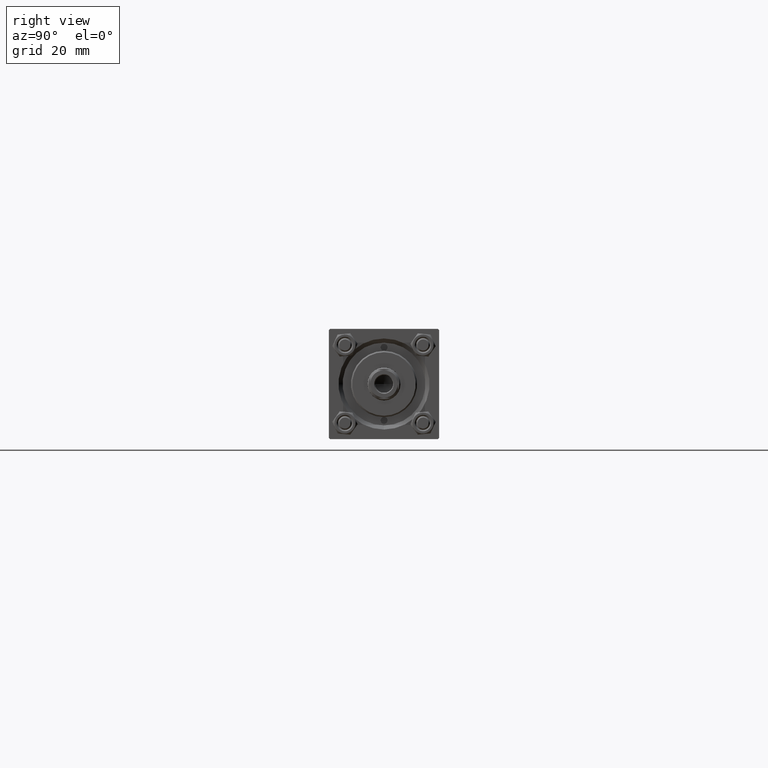
[diagram: clean part render]
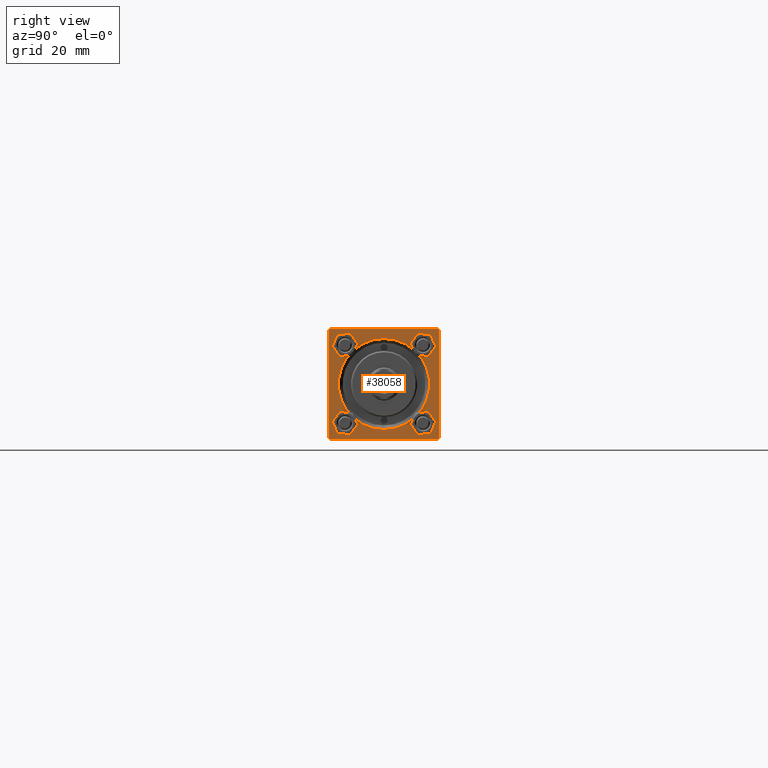
[diagram: same view with one face highlighted and labeled with its STEP entity id]
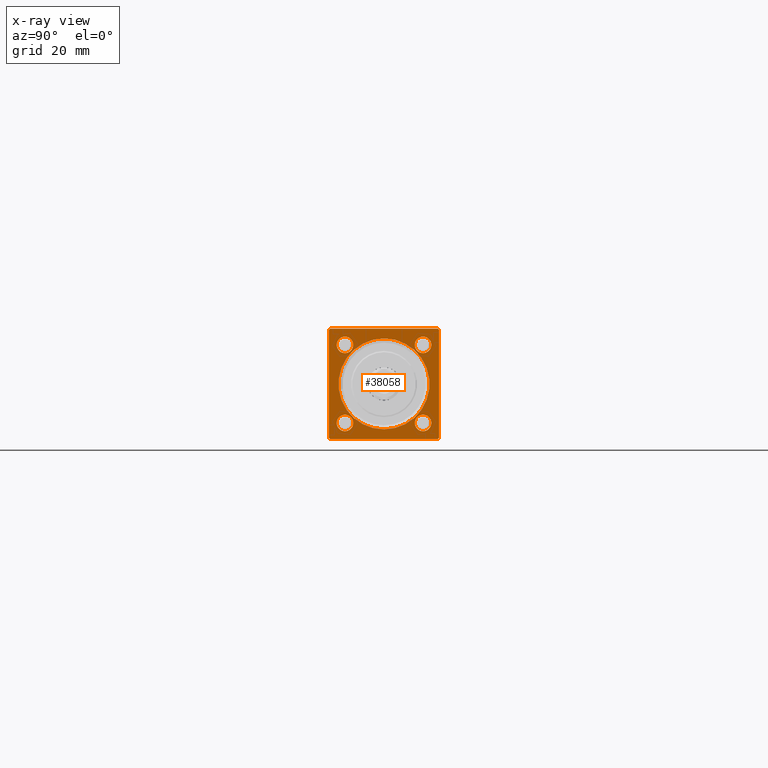
[diagram: x-ray of the same camera — body ghosted, the highlighted face saturated]
A machine part, right view. The second image highlights one B-rep face of the part: STEP entity #38058.
The next image is the same camera in x-ray: the body ghosted, the highlighted face saturated — about 0% of this face is hidden behind the body in this view.
In plain terms, the highlighted planar face has unit normal (-1, 0, 0).
Its self-contained STEP definition (entity closure, byte-faithful):
#672 = VERTEX_POINT ( 'NONE', #37649 ) ;
#1113 = EDGE_CURVE ( 'NONE', #7236, #18764, #37791, .T. ) ;
#2310 = CARTESIAN_POINT ( 'NONE',  ( 224.9999999999999716, 19.99999999999999645, 19.50000000000000000 ) ) ;
#2459 = ORIENTED_EDGE ( 'NONE', *, *, #8846, .T. ) ;
#2927 = ORIENTED_EDGE ( 'NONE', *, *, #18251, .F. ) ;
#2967 = VERTEX_POINT ( 'NONE', #48168 ) ;
#4169 = CARTESIAN_POINT ( 'NONE',  ( 224.9999999999999716, -14.15000000000000036, -14.15000000000000036 ) ) ;
#4239 = FACE_BOUND ( 'NONE', #39670, .T. ) ;
#4836 = DIRECTION ( 'NONE',  ( 0.000000000000000000, 0.000000000000000000, 1.000000000000000000 ) ) ;
#5036 = AXIS2_PLACEMENT_3D ( 'NONE', #20615, #24147, #28438 ) ;
#5046 = VECTOR ( 'NONE', #8676, 1000.000000000000000 ) ;
#5124 = CARTESIAN_POINT ( 'NONE',  ( 224.9999999999999716, -20.00000000000000000, -19.50000000000002487 ) ) ;
#5737 = ORIENTED_EDGE ( 'NONE', *, *, #20687, .T. ) ;
#5779 = CARTESIAN_POINT ( 'NONE',  ( 224.9999999999999716, 14.15000000000000036, -14.15000000000000036 ) ) ;
#6175 = CARTESIAN_POINT ( 'NONE',  ( 224.9999999999999716, 0.000000000000000000, 0.000000000000000000 ) ) ;
#6686 = DIRECTION ( 'NONE',  ( 0.000000000000000000, 0.000000000000000000, 1.000000000000000000 ) ) ;
#7175 = CARTESIAN_POINT ( 'NONE',  ( 224.9999999999999716, 0.000000000000000000, 0.000000000000000000 ) ) ;
#7230 = AXIS2_PLACEMENT_3D ( 'NONE', #26467, #41867, #46917 ) ;
#7236 = VERTEX_POINT ( 'NONE', #25157 ) ;
#7266 = DIRECTION ( 'NONE',  ( 0.000000000000000000, 0.000000000000000000, 1.000000000000000000 ) ) ;
#7281 = FACE_OUTER_BOUND ( 'NONE', #36990, .T. ) ;
#8433 = CIRCLE ( 'NONE', #34204, 16.50000000000001421 ) ;
#8676 = DIRECTION ( 'NONE',  ( 0.000000000000000000, -1.000000000000000000, -8.673617379884035472E-17 ) ) ;
#8846 = EDGE_CURVE ( 'NONE', #34570, #28598, #32977, .T. ) ;
#9345 = CARTESIAN_POINT ( 'NONE',  ( 224.9999999999999716, 19.99999999999999645, -19.50000000000000000 ) ) ;
#9641 = CARTESIAN_POINT ( 'NONE',  ( 224.9999999999999716, 14.15000000000000036, -14.15000000000000036 ) ) ;
#10022 = AXIS2_PLACEMENT_3D ( 'NONE', #45278, #29884, #6686 ) ;
#10477 = CIRCLE ( 'NONE', #7230, 3.000000000000004441 ) ;
#11219 = EDGE_CURVE ( 'NONE', #28598, #34570, #10477, .T. ) ;
#11273 = ORIENTED_EDGE ( 'NONE', *, *, #36406, .T. ) ;
#11442 = VECTOR ( 'NONE', #47156, 1000.000000000000000 ) ;
#11625 = VERTEX_POINT ( 'NONE', #49257 ) ;
#12061 = EDGE_CURVE ( 'NONE', #48264, #11625, #45146, .T. ) ;
#12851 = CARTESIAN_POINT ( 'NONE',  ( 224.9999999999999716, 14.15000000000000036, 11.14999999999999858 ) ) ;
#14619 = FACE_BOUND ( 'NONE', #21502, .T. ) ;
#14681 = ORIENTED_EDGE ( 'NONE', *, *, #1113, .F. ) ;
#14854 = DIRECTION ( 'NONE',  ( 0.000000000000000000, -0.7071067811865474617, 0.7071067811865474617 ) ) ;
#15287 = CARTESIAN_POINT ( 'NONE',  ( 224.9999999999999716, 14.15000000000000036, -17.15000000000000568 ) ) ;
#15573 = CARTESIAN_POINT ( 'NONE',  ( 224.9999999999999716, 19.99999999999999645, -20.00000000000000000 ) ) ;
#16115 = EDGE_CURVE ( 'NONE', #34964, #46826, #19900, .T. ) ;
#16320 = CARTESIAN_POINT ( 'NONE',  ( 224.9999999999999716, 19.99999999999999645, 20.00000000000000000 ) ) ;
#17378 = DIRECTION ( 'NONE',  ( -1.000000000000000000, -0.000000000000000000, -0.000000000000000000 ) ) ;
#17623 = DIRECTION ( 'NONE',  ( 0.000000000000000000, 0.000000000000000000, 1.000000000000000000 ) ) ;
#17655 = AXIS2_PLACEMENT_3D ( 'NONE', #34023, #30223, #7266 ) ;
#17722 = VERTEX_POINT ( 'NONE', #2310 ) ;
#18251 = EDGE_CURVE ( 'NONE', #17722, #42855, #43812, .T. ) ;
#18272 = DIRECTION ( 'NONE',  ( -1.000000000000000000, -0.000000000000000000, -0.000000000000000000 ) ) ;
#18288 = VECTOR ( 'NONE', #46085, 1000.000000000000000 ) ;
#18496 = CARTESIAN_POINT ( 'NONE',  ( 224.9999999999999716, 14.15000000000000036, 17.15000000000000568 ) ) ;
#18746 = DIRECTION ( 'NONE',  ( 0.000000000000000000, 0.000000000000000000, 1.000000000000000000 ) ) ;
#18764 = VERTEX_POINT ( 'NONE', #38905 ) ;
#18820 = VERTEX_POINT ( 'NONE', #27283 ) ;
#18871 = CARTESIAN_POINT ( 'NONE',  ( 224.9999999999999716, 0.000000000000000000, 0.000000000000000000 ) ) ;
#19037 = EDGE_LOOP ( 'NONE', ( #41536, #46568 ) ) ;
#19195 = ORIENTED_EDGE ( 'NONE', *, *, #41080, .T. ) ;
#19377 = CIRCLE ( 'NONE', #37153, 3.000000000000004441 ) ;
#19388 = PLANE ( 'NONE',  #36651 ) ;
#19900 = LINE ( 'NONE', #35307, #11442 ) ;
#20497 = CIRCLE ( 'NONE', #48684, 3.000000000000004441 ) ;
#20583 = ORIENTED_EDGE ( 'NONE', *, *, #11219, .T. ) ;
#20615 = CARTESIAN_POINT ( 'NONE',  ( 224.9999999999999716, -14.15000000000000036, 14.15000000000000036 ) ) ;
#20687 = EDGE_CURVE ( 'NONE', #11625, #48264, #21956, .T. ) ;
#20785 = EDGE_LOOP ( 'NONE', ( #11273, #40885 ) ) ;
#21502 = EDGE_LOOP ( 'NONE', ( #20583, #2459 ) ) ;
#21752 = DIRECTION ( 'NONE',  ( -0.000000000000000000, 0.7071067811865474617, 0.7071067811865474617 ) ) ;
#21956 = CIRCLE ( 'NONE', #5036, 2.999999999999976463 ) ;
#22078 = AXIS2_PLACEMENT_3D ( 'NONE', #7175, #18272, #30629 ) ;
#22413 = CARTESIAN_POINT ( 'NONE',  ( 224.9999999999999716, 19.49999999999999645, 20.00000000000000000 ) ) ;
#22591 = ORIENTED_EDGE ( 'NONE', *, *, #36143, .T. ) ;
#22670 = DIRECTION ( 'NONE',  ( -0.000000000000000000, 0.000000000000000000, 1.000000000000000000 ) ) ;
#22929 = CIRCLE ( 'NONE', #27760, 3.000000000000004441 ) ;
#23166 = FACE_BOUND ( 'NONE', #20785, .T. ) ;
#23420 = DIRECTION ( 'NONE',  ( -1.000000000000000000, 0.000000000000000000, -0.000000000000000000 ) ) ;
#23595 = EDGE_CURVE ( 'NONE', #672, #37225, #19377, .T. ) ;
#23853 = DIRECTION ( 'NONE',  ( -1.000000000000000000, -0.000000000000000000, -0.000000000000000000 ) ) ;
#23947 = ORIENTED_EDGE ( 'NONE', *, *, #23595, .T. ) ;
#24131 = ORIENTED_EDGE ( 'NONE', *, *, #35899, .T. ) ;
#24147 = DIRECTION ( 'NONE',  ( -1.000000000000000000, -0.000000000000000000, -0.000000000000000000 ) ) ;
#25157 = CARTESIAN_POINT ( 'NONE',  ( 224.9999999999999716, 19.49999999999999645, -20.00000000000000000 ) ) ;
#25913 = VECTOR ( 'NONE', #47343, 1000.000000000000000 ) ;
#26467 = CARTESIAN_POINT ( 'NONE',  ( 224.9999999999999716, 14.15000000000000036, 14.15000000000000036 ) ) ;
#26590 = VERTEX_POINT ( 'NONE', #5124 ) ;
#26600 = AXIS2_PLACEMENT_3D ( 'NONE', #46805, #29057, #44450 ) ;
#27283 = CARTESIAN_POINT ( 'NONE',  ( 224.9999999999999716, 2.020667218593134678E-15, 16.50000000000001421 ) ) ;
#27337 = LINE ( 'NONE', #42224, #5046 ) ;
#27760 = AXIS2_PLACEMENT_3D ( 'NONE', #4169, #23853, #46301 ) ;
#28438 = DIRECTION ( 'NONE',  ( 0.000000000000000000, 0.000000000000000000, 1.000000000000000000 ) ) ;
#28598 = VERTEX_POINT ( 'NONE', #12851 ) ;
#29057 = DIRECTION ( 'NONE',  ( -1.000000000000000000, -0.000000000000000000, -0.000000000000000000 ) ) ;
#29327 = LINE ( 'NONE', #30313, #38222 ) ;
#29884 = DIRECTION ( 'NONE',  ( -1.000000000000000000, -0.000000000000000000, -0.000000000000000000 ) ) ;
#29948 = CARTESIAN_POINT ( 'NONE',  ( 224.9999999999999716, -20.00000000000000355, 19.99999999999999645 ) ) ;
#30110 = DIRECTION ( 'NONE',  ( -1.000000000000000000, -0.000000000000000000, -0.000000000000000000 ) ) ;
#30114 = CARTESIAN_POINT ( 'NONE',  ( 224.9999999999999716, -14.15000000000000036, -11.14999999999999680 ) ) ;
#30142 = CIRCLE ( 'NONE', #10022, 3.000000000000004441 ) ;
#30223 = DIRECTION ( 'NONE',  ( -1.000000000000000000, -0.000000000000000000, -0.000000000000000000 ) ) ;
#30313 = CARTESIAN_POINT ( 'NONE',  ( 224.9999999999999716, 19.99999999999999645, -19.50000000000000000 ) ) ;
#30329 = VERTEX_POINT ( 'NONE', #36697 ) ;
#30629 = DIRECTION ( 'NONE',  ( 0.000000000000000000, 0.000000000000000000, 1.000000000000000000 ) ) ;
#30692 = DIRECTION ( 'NONE',  ( 0.000000000000000000, 8.673617379884036705E-17, -1.000000000000000000 ) ) ;
#31740 = EDGE_CURVE ( 'NONE', #41657, #34964, #27337, .T. ) ;
#32486 = ORIENTED_EDGE ( 'NONE', *, *, #12061, .T. ) ;
#32557 = ORIENTED_EDGE ( 'NONE', *, *, #31740, .T. ) ;
#32977 = CIRCLE ( 'NONE', #17655, 3.000000000000004441 ) ;
#33419 = CARTESIAN_POINT ( 'NONE',  ( 224.9999999999999716, -14.15000000000000036, 17.14999999999997726 ) ) ;
#34023 = CARTESIAN_POINT ( 'NONE',  ( 224.9999999999999716, 14.15000000000000036, 14.15000000000000036 ) ) ;
#34204 = AXIS2_PLACEMENT_3D ( 'NONE', #6175, #30110, #18746 ) ;
#34487 = ORIENTED_EDGE ( 'NONE', *, *, #43994, .T. ) ;
#34570 = VERTEX_POINT ( 'NONE', #18496 ) ;
#34964 = VERTEX_POINT ( 'NONE', #38823 ) ;
#35307 = CARTESIAN_POINT ( 'NONE',  ( 224.9999999999999716, -20.00000000000000355, 19.50000000000002487 ) ) ;
#35899 = EDGE_CURVE ( 'NONE', #7236, #42855, #29327, .T. ) ;
#36143 = EDGE_CURVE ( 'NONE', #46826, #26590, #49125, .T. ) ;
#36406 = EDGE_CURVE ( 'NONE', #30329, #48369, #30142, .T. ) ;
#36434 = EDGE_CURVE ( 'NONE', #18820, #2967, #47083, .T. ) ;
#36563 = ORIENTED_EDGE ( 'NONE', *, *, #41574, .T. ) ;
#36621 = VECTOR ( 'NONE', #30692, 1000.000000000000000 ) ;
#36651 = AXIS2_PLACEMENT_3D ( 'NONE', #18871, #23420, #22670 ) ;
#36697 = CARTESIAN_POINT ( 'NONE',  ( 224.9999999999999716, -14.15000000000000036, -17.15000000000000568 ) ) ;
#36990 = EDGE_LOOP ( 'NONE', ( #22591, #36563, #14681, #24131, #2927, #34487, #32557, #43125 ) ) ;
#37142 = EDGE_CURVE ( 'NONE', #48369, #30329, #22929, .T. ) ;
#37153 = AXIS2_PLACEMENT_3D ( 'NONE', #9641, #47491, #4836 ) ;
#37225 = VERTEX_POINT ( 'NONE', #15287 ) ;
#37329 = EDGE_CURVE ( 'NONE', #2967, #18820, #8433, .T. ) ;
#37649 = CARTESIAN_POINT ( 'NONE',  ( 224.9999999999999716, 14.15000000000000036, -11.14999999999999680 ) ) ;
#37791 = LINE ( 'NONE', #15573, #18288 ) ;
#37829 = FACE_BOUND ( 'NONE', #49800, .T. ) ;
#38058 = ADVANCED_FACE ( 'NONE', ( #23166, #4239, #14619, #37829, #38573, #7281 ), #19388, .F. ) ;
#38222 = VECTOR ( 'NONE', #21752, 1000.000000000000114 ) ;
#38573 = FACE_BOUND ( 'NONE', #19037, .T. ) ;
#38823 = CARTESIAN_POINT ( 'NONE',  ( 224.9999999999999716, -19.50000000000006040, 19.99999999999999645 ) ) ;
#38905 = CARTESIAN_POINT ( 'NONE',  ( 224.9999999999999716, -19.49999999999999645, -20.00000000000000000 ) ) ;
#39222 = LINE ( 'NONE', #47287, #44722 ) ;
#39670 = EDGE_LOOP ( 'NONE', ( #19195, #23947 ) ) ;
#39977 = CARTESIAN_POINT ( 'NONE',  ( 224.9999999999999716, 19.49999999999999645, 20.00000000000000000 ) ) ;
#40885 = ORIENTED_EDGE ( 'NONE', *, *, #37142, .T. ) ;
#41080 = EDGE_CURVE ( 'NONE', #37225, #672, #20497, .T. ) ;
#41095 = LINE ( 'NONE', #22413, #46373 ) ;
#41536 = ORIENTED_EDGE ( 'NONE', *, *, #37329, .T. ) ;
#41574 = EDGE_CURVE ( 'NONE', #26590, #18764, #39222, .T. ) ;
#41657 = VERTEX_POINT ( 'NONE', #39977 ) ;
#41867 = DIRECTION ( 'NONE',  ( -1.000000000000000000, -0.000000000000000000, -0.000000000000000000 ) ) ;
#42224 = CARTESIAN_POINT ( 'NONE',  ( 224.9999999999999716, 19.99999999999999645, 20.00000000000000000 ) ) ;
#42239 = DIRECTION ( 'NONE',  ( 0.000000000000000000, 0.7071067811865672237, -0.7071067811865279218 ) ) ;
#42855 = VERTEX_POINT ( 'NONE', #9345 ) ;
#43125 = ORIENTED_EDGE ( 'NONE', *, *, #16115, .T. ) ;
#43812 = LINE ( 'NONE', #16320, #25913 ) ;
#43994 = EDGE_CURVE ( 'NONE', #17722, #41657, #41095, .T. ) ;
#44450 = DIRECTION ( 'NONE',  ( 0.000000000000000000, 0.000000000000000000, 1.000000000000000000 ) ) ;
#44722 = VECTOR ( 'NONE', #42239, 1000.000000000000000 ) ;
#45146 = CIRCLE ( 'NONE', #26600, 2.999999999999976463 ) ;
#45278 = CARTESIAN_POINT ( 'NONE',  ( 224.9999999999999716, -14.15000000000000036, -14.15000000000000036 ) ) ;
#46085 = DIRECTION ( 'NONE',  ( 0.000000000000000000, -1.000000000000000000, 0.000000000000000000 ) ) ;
#46301 = DIRECTION ( 'NONE',  ( 0.000000000000000000, 0.000000000000000000, 1.000000000000000000 ) ) ;
#46373 = VECTOR ( 'NONE', #14854, 1000.000000000000114 ) ;
#46568 = ORIENTED_EDGE ( 'NONE', *, *, #36434, .T. ) ;
#46805 = CARTESIAN_POINT ( 'NONE',  ( 224.9999999999999716, -14.15000000000000036, 14.15000000000000036 ) ) ;
#46826 = VERTEX_POINT ( 'NONE', #48441 ) ;
#46917 = DIRECTION ( 'NONE',  ( 0.000000000000000000, 0.000000000000000000, 1.000000000000000000 ) ) ;
#47083 = CIRCLE ( 'NONE', #22078, 16.50000000000001421 ) ;
#47156 = DIRECTION ( 'NONE',  ( -0.000000000000000000, -0.7071067811865279218, -0.7071067811865671127 ) ) ;
#47287 = CARTESIAN_POINT ( 'NONE',  ( 224.9999999999999716, -19.49999999999999645, -20.00000000000000000 ) ) ;
#47343 = DIRECTION ( 'NONE',  ( 0.000000000000000000, 0.000000000000000000, -1.000000000000000000 ) ) ;
#47491 = DIRECTION ( 'NONE',  ( -1.000000000000000000, -0.000000000000000000, -0.000000000000000000 ) ) ;
#48168 = CARTESIAN_POINT ( 'NONE',  ( 224.9999999999999716, 0.000000000000000000, -16.50000000000001421 ) ) ;
#48264 = VERTEX_POINT ( 'NONE', #33419 ) ;
#48369 = VERTEX_POINT ( 'NONE', #30114 ) ;
#48441 = CARTESIAN_POINT ( 'NONE',  ( 224.9999999999999716, -20.00000000000000355, 19.50000000000002487 ) ) ;
#48684 = AXIS2_PLACEMENT_3D ( 'NONE', #5779, #17378, #17623 ) ;
#49125 = LINE ( 'NONE', #29948, #36621 ) ;
#49257 = CARTESIAN_POINT ( 'NONE',  ( 224.9999999999999716, -14.15000000000000036, 11.15000000000002700 ) ) ;
#49800 = EDGE_LOOP ( 'NONE', ( #5737, #32486 ) ) ;